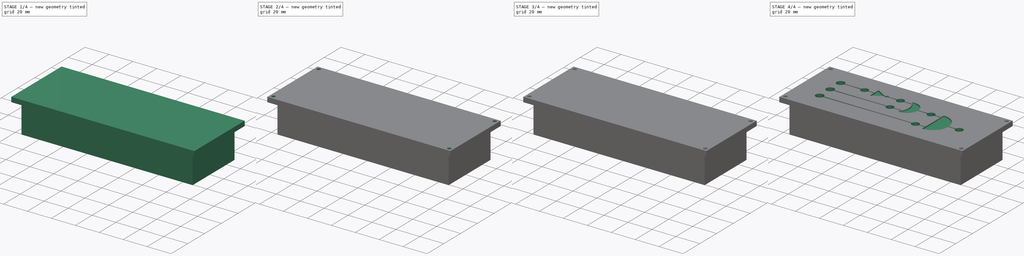
[diagram: build sequence overview — one tinted view per stage of 4, left to right]
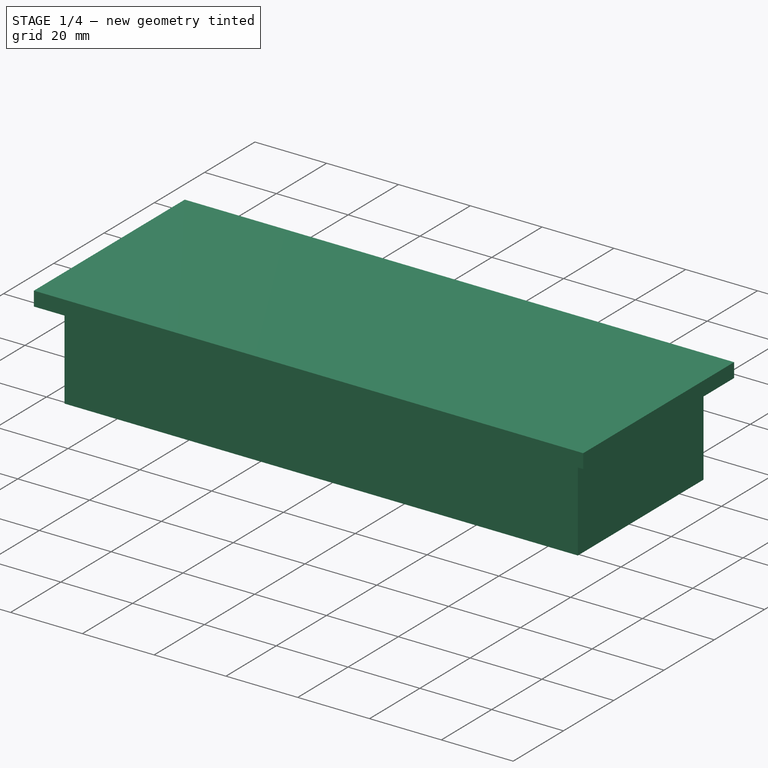
[diagram: stage 1 of 4 — iso view after this stage's code; geometry added in this stage tinted green]
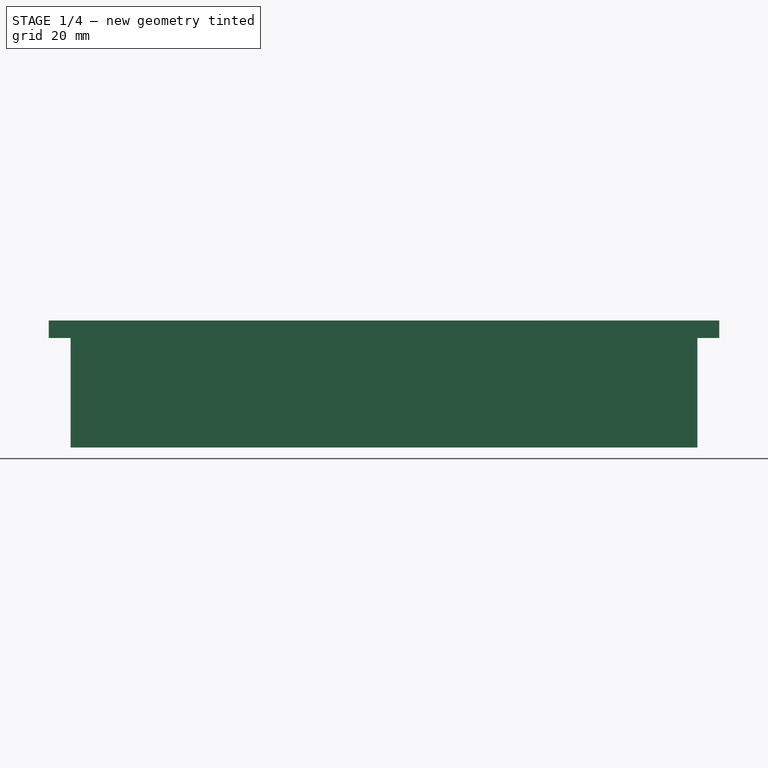
[diagram: stage 1 of 4 — front view after this stage's code; geometry added in this stage tinted green]
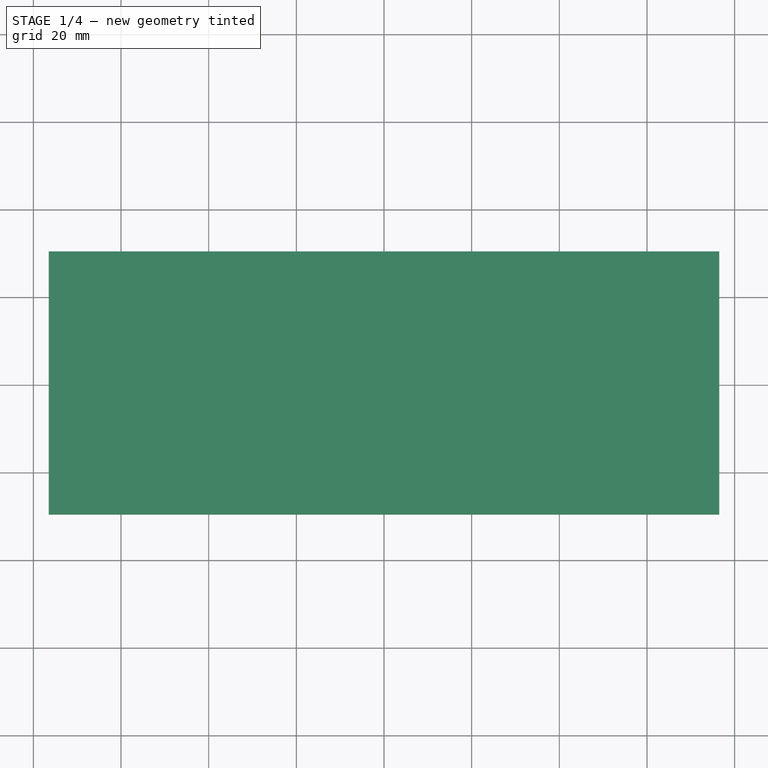
[diagram: stage 1 of 4 — top view after this stage's code; geometry added in this stage tinted green]
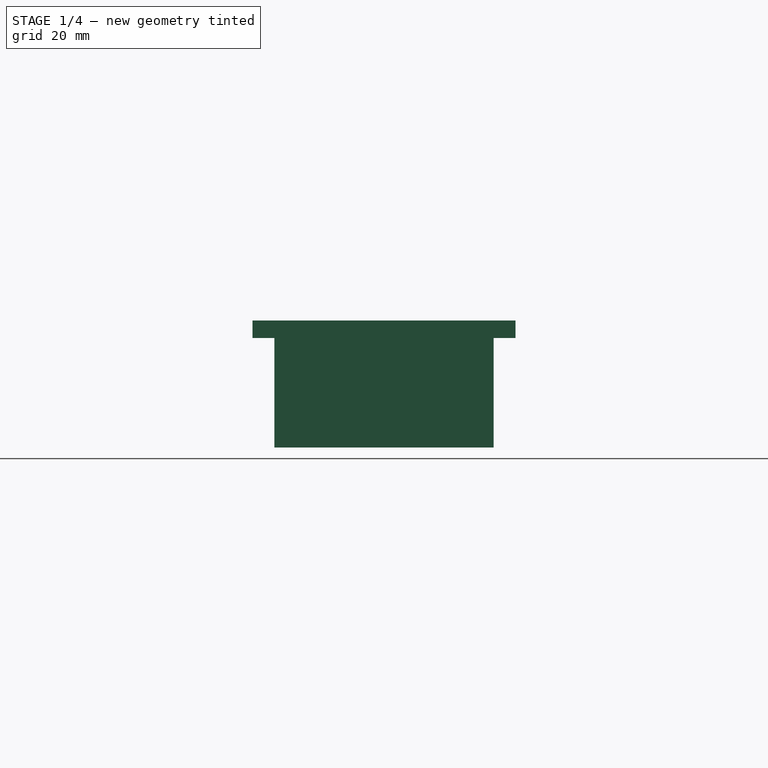
[diagram: stage 1 of 4 — right view after this stage's code; geometry added in this stage tinted green]
FCSTD DOCUMENT  (FreeCAD 0.20R29603 (Git))
Label: module-2
License: All rights reserved
LicenseURL: http://en.wikipedia.org/wiki/All_rights_reserved
objects: Sketcher::SketchObject×7, PartDesign::Pocket×4, PartDesign::Mirrored×4, PartDesign::Pad×3, PartDesign::MultiTransform×2, PartDesign::Body×1
note: 28 computed .brp shape members not serialized (recipe doc carries the construction recipe); baked Part::Feature solids carry a one-line shape summary decoded from their .brp

FEATURE [Sketcher::SketchObject] Sketch  label="FrontPanelBase"
  FullyConstrained = true
  MapMode = 5
  Support = -> [XY_Plane]
  sketch-geometry (4):
    g0: LineSegment StartX=-76.5 StartY=30 StartZ=0 EndX=76.5 EndY=30 EndZ=0
    g1: LineSegment StartX=76.5 StartY=30 StartZ=0 EndX=76.5 EndY=-30 EndZ=0
    g2: LineSegment StartX=76.5 StartY=-30 StartZ=0 EndX=-76.5 EndY=-30 EndZ=0
    g3: LineSegment StartX=-76.5 StartY=-30 StartZ=0 EndX=-76.5 EndY=30 EndZ=0
  constraints (10):
    c: Coincident(g0,g1)
    c: Coincident(g1,g2)
    c: Coincident(g2,g3)
    c: Coincident(g3,g0)
    c: DistanceX(g0,g0) = 153
    c: DistanceY(g3,g3) = 60
    c: Vertical(g1)
    c: Horizontal(g2)
    c: Symmetric(g0,g0,g-2)
    c: Symmetric(g0,g2,g-1)
FEATURE [PartDesign::Pad] Pad
  Direction = (0,0,1)
  Length = 4
  Length2 = 10
  Profile = -> Sketch
  ReferenceAxis = -> Sketch [N_Axis]
  Type = 0
FEATURE [Sketcher::SketchObject] Sketch002  label="InnerWall"
  FullyConstrained = true
  MapMode = 5
  Placement = pos=(0,0,0) rot=(1,0,0;3.14159rad)
  Support = -> [Pad]
  sketch-geometry (8):
    g0: LineSegment StartX=-71.5 StartY=25 StartZ=0 EndX=71.5 EndY=25 EndZ=0
    g1: LineSegment StartX=71.5 StartY=25 StartZ=0 EndX=71.5 EndY=-25 EndZ=0
    g2: LineSegment StartX=71.5 StartY=-25 StartZ=0 EndX=-71.5 EndY=-25 EndZ=0
    g3: LineSegment StartX=-71.5 StartY=-25 StartZ=0 EndX=-71.5 EndY=25 EndZ=0
    g4: LineSegment StartX=-69.5 StartY=23 StartZ=0 EndX=69.5 EndY=23 EndZ=0
    g5: LineSegment StartX=69.5 StartY=23 StartZ=0 EndX=69.5 EndY=-23 EndZ=0
    g6: LineSegment StartX=69.5 StartY=-23 StartZ=0 EndX=-69.5 EndY=-23 EndZ=0
    g7: LineSegment StartX=-69.5 StartY=-23 StartZ=0 EndX=-69.5 EndY=23 EndZ=0
  constraints (23):
    c: Coincident(g0,g1)
    c: Coincident(g1,g2)
    c: Coincident(g2,g3)
    c: Coincident(g3,g0)
    c: Horizontal(g0)
    c: Horizontal(g2)
    c: Vertical(g1)
    c: Vertical(g3)
    c: Symmetric(g0,g1,g-1)
    c: Coincident(g4,g5)
    c: Coincident(g5,g6)
    c: Coincident(g6,g7)
    c: Coincident(g7,g4)
    c: Horizontal(g4)
    c: Horizontal(g6)
    c: Vertical(g5)
    c: Vertical(g7)
    c: Distance(g0,g7) = 2
    c: Distance(g0,g4) = 2
    c: Distance(g2,g6) = 2
    c: Distance(g1,g5) = 2
    c: DistanceX(g4,g4) = 139
    c: DistanceY(g6,g4) = 46
FEATURE [PartDesign::Pad] Pad001
  BaseFeature = -> Pad
  Direction = (0,0,-1)
  Length = 25
  Length2 = 10
  Profile = -> Sketch002
  ReferenceAxis = -> Sketch002 [N_Axis]
  Type = 0
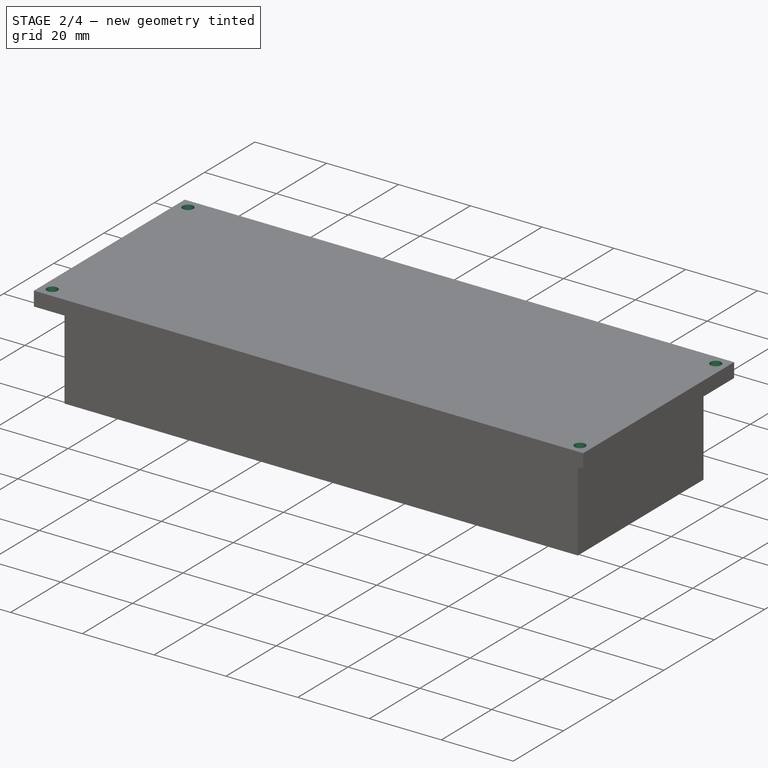
[diagram: stage 2 of 4 — iso view after this stage's code; geometry added in this stage tinted green]
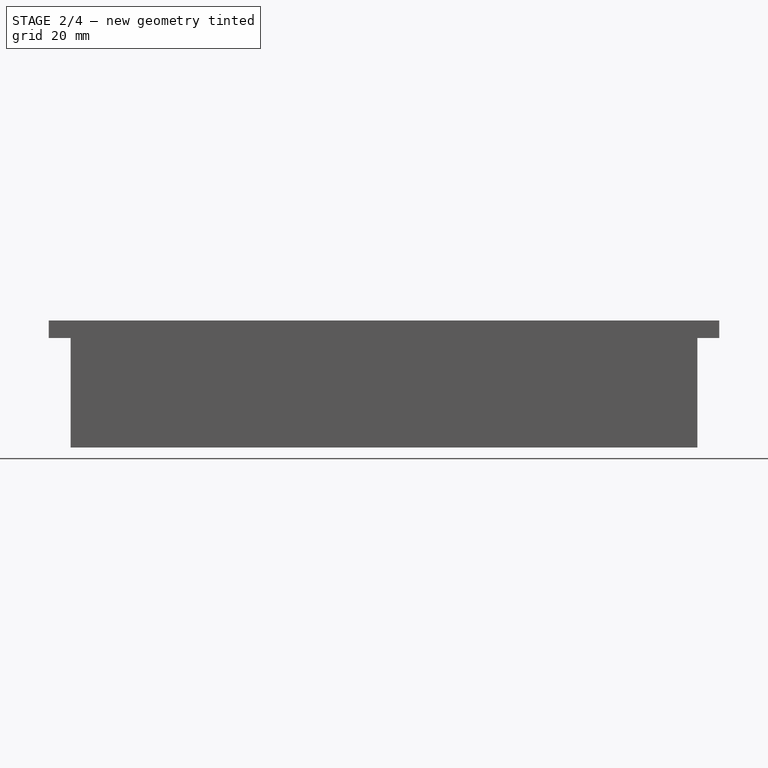
[diagram: stage 2 of 4 — front view after this stage's code; geometry added in this stage tinted green]
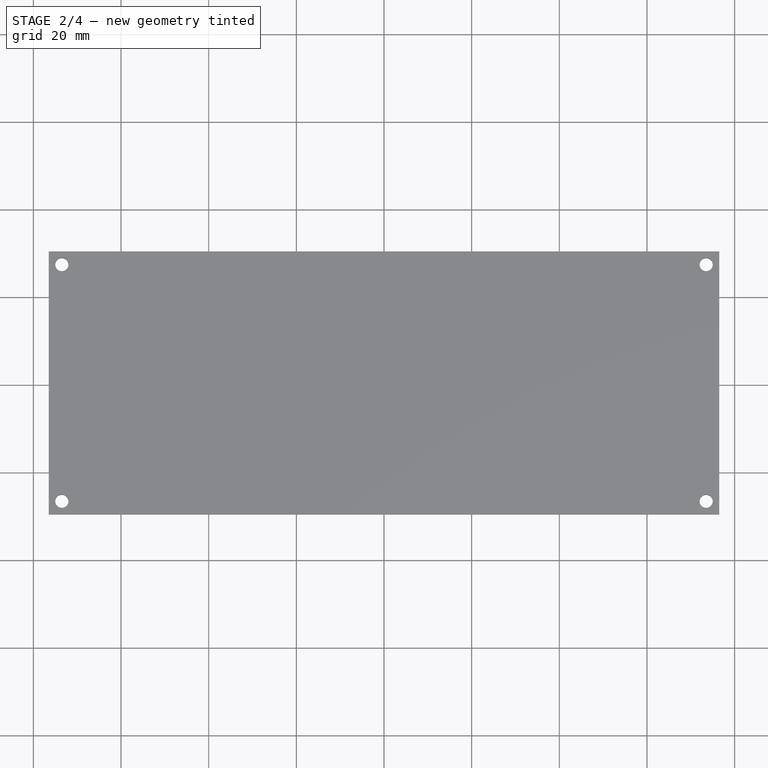
[diagram: stage 2 of 4 — top view after this stage's code; geometry added in this stage tinted green]
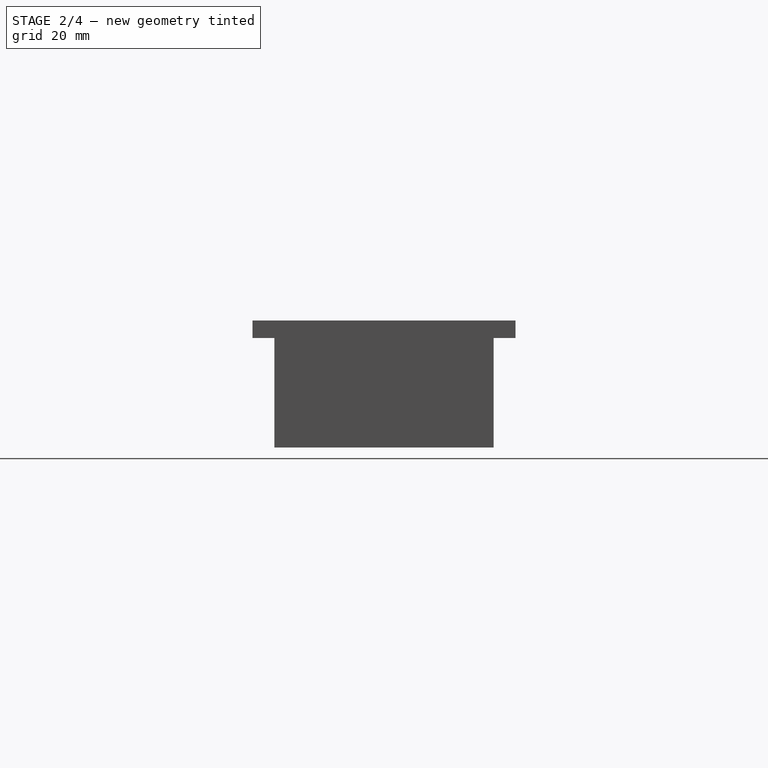
[diagram: stage 2 of 4 — right view after this stage's code; geometry added in this stage tinted green]
FEATURE [Sketcher::SketchObject] Sketch003  label="FrontPanelHoles"
  ExternalGeometry = -> [Pad001]
  FullyConstrained = true
  MapMode = 5
  Placement = pos=(0,0,0) rot=(1,0,0;3.14159rad)
  Support = -> [Pad001]
  sketch-geometry (4):
    g0: Circle CenterX=-73.5 CenterY=27 CenterZ=0 NormalX=0 NormalY=0 NormalZ=1 AngleXU=0 Radius=1.5
    g1: Circle CenterX=-73.5 CenterY=-27 CenterZ=0 NormalX=0 NormalY=0 NormalZ=1 AngleXU=0 Radius=1.5
    g2: Circle CenterX=73.5 CenterY=-27 CenterZ=0 NormalX=0 NormalY=0 NormalZ=1 AngleXU=0 Radius=1.5
    g3: Circle CenterX=73.5 CenterY=27 CenterZ=0 NormalX=0 NormalY=0 NormalZ=1 AngleXU=0 Radius=1.5
  constraints (12):
    c: Diameter(g0) = 3
    c: Equal(g3,g2)
    c: Equal(g2,g1)
    c: Equal(g1,g0)
    c: Distance(g1,g-5) = 3
    c: Distance(g1,g-3) = 3
    c: Distance(g2,g-5) = 3
    c: Distance(g2,g-6) = 3
    c: Distance(g3,g-6) = 3
    c: Distance(g3,g-4) = 3
    c: Distance(g0,g-4) = 3
    c: Distance(g0,g-3) = 3
FEATURE [PartDesign::Pocket] Pocket
  BaseFeature = -> Pad001
  Direction = (0,0,1)
  Length = 5
  Length2 = 5
  Profile = -> Sketch003
  ReferenceAxis = -> Sketch003 [N_Axis]
  Type = 1
FEATURE [Sketcher::SketchObject] Sketch004  label="LidSupport"
  ExternalGeometry = -> [Pocket]
  FullyConstrained = true
  MapMode = 5
  Placement = pos=(0,0,0) rot=(1,0,0;3.14159rad)
  Support = -> [Pocket]
  sketch-geometry (3):
    g0: LineSegment StartX=-69.5 StartY=23 StartZ=0 EndX=-62.5 EndY=23 EndZ=0
    g1: LineSegment StartX=-69.5 StartY=23 StartZ=0 EndX=-69.5 EndY=16 EndZ=0
    g2: ArcOfCircle CenterX=-69.5 CenterY=23 CenterZ=0 NormalX=0 NormalY=0 NormalZ=1 AngleXU=0 Radius=7 StartAngle=4.71239 EndAngle=6.28319
  constraints (8):
    c: Horizontal(g0)
    c: Coincident(g1,g0)
    c: Coincident(g2,g0)
    c: Coincident(g2,g0)
    c: Radius(g2) = 7
    c: Coincident(g1,g2)
    c: Vertical(g1)
    c: Coincident(g0,g-4)
FEATURE [PartDesign::Mirrored] Mirrored  label="LidSupportMirrorV"
  MirrorPlane = -> Sketch004 [V_Axis]
FEATURE [PartDesign::Mirrored] Mirrored001  label="LidSupportMirrorH"
  MirrorPlane = -> Sketch004 [H_Axis]
FEATURE [PartDesign::Pad] Pad002
  BaseFeature = -> Pocket
  Direction = (0,0,-1)
  Length = 22
  Length2 = 10
  Profile = -> Sketch004
  ReferenceAxis = -> Sketch004 [N_Axis]
  Type = 0
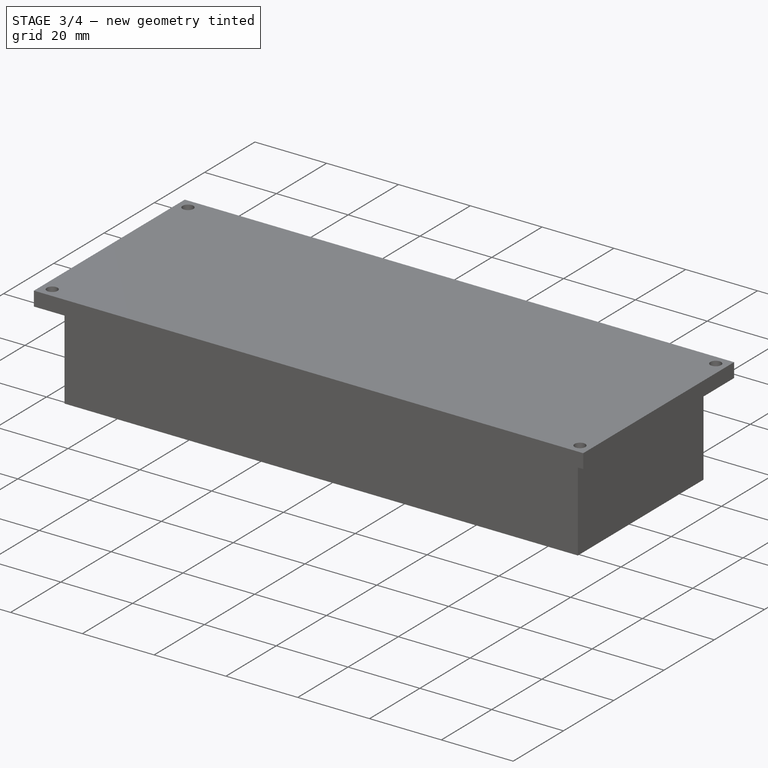
[diagram: stage 3 of 4 — iso view after this stage's code; geometry added in this stage tinted green]
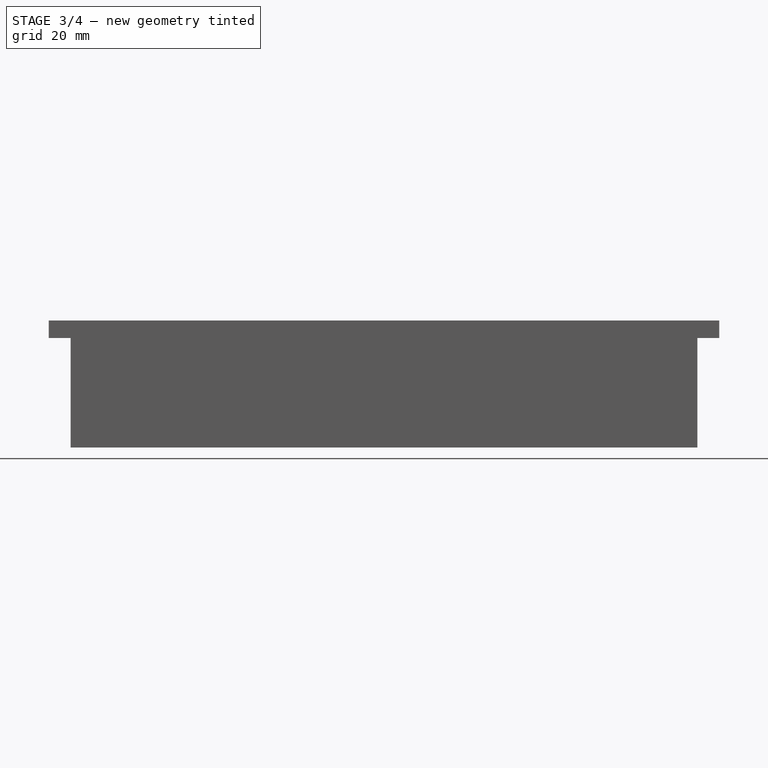
[diagram: stage 3 of 4 — front view after this stage's code; geometry added in this stage tinted green]
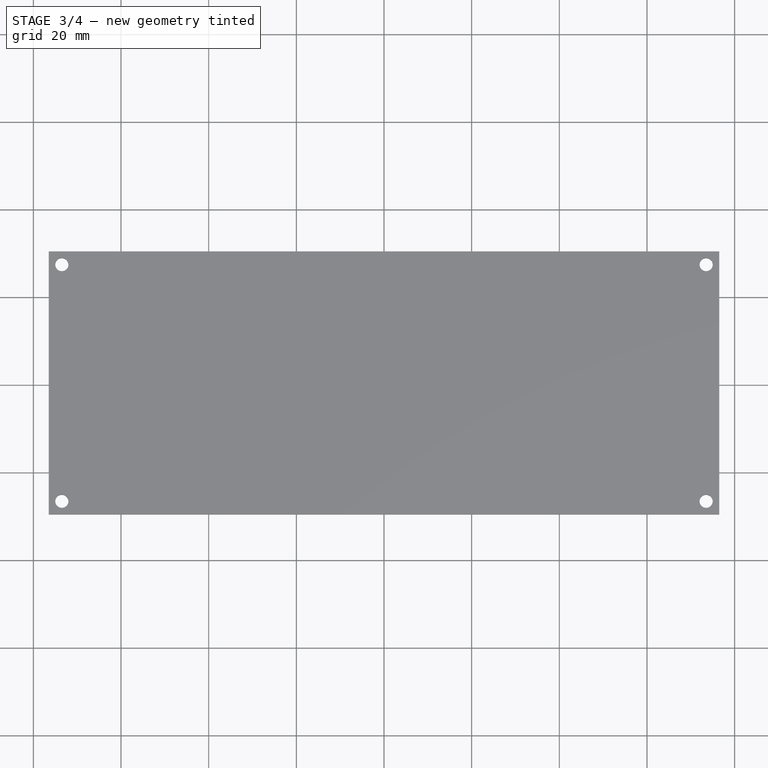
[diagram: stage 3 of 4 — top view after this stage's code; geometry added in this stage tinted green]
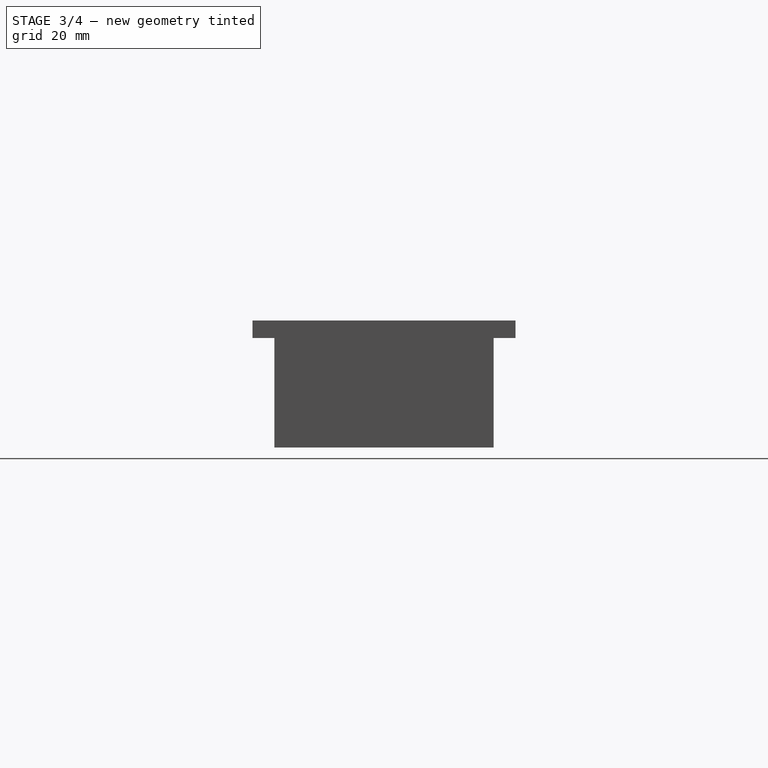
[diagram: stage 3 of 4 — right view after this stage's code; geometry added in this stage tinted green]
FEATURE [PartDesign::MultiTransform] MultiTransform
  BaseFeature = -> Pad002
  Originals = -> [Pad002]
  Transformations = -> [Mirrored,Mirrored001]
FEATURE [Sketcher::SketchObject] Sketch005  label="LidHole"
  ExternalGeometry = -> [MultiTransform]
  FullyConstrained = true
  MapMode = 5
  Placement = pos=(0,0,-22) rot=(1,0,0;3.14159rad)
  Support = -> [MultiTransform]
  sketch-geometry (1):
    g0: Circle CenterX=-66.7 CenterY=20.2 CenterZ=0 NormalX=0 NormalY=0 NormalZ=1 AngleXU=0 Radius=2.25
  constraints (3):
    c: Diameter(g0) = 4.5
    c: Distance(g0,g-3) = 2.8
    c: Distance(g0,g-4) = 2.8
FEATURE [PartDesign::Mirrored] Mirrored002  label="LidHoleMirrorV"
  MirrorPlane = -> Sketch005 [V_Axis]
FEATURE [PartDesign::Mirrored] Mirrored003  label="LidHoleMirrorH"
  MirrorPlane = -> Sketch005 [H_Axis]
FEATURE [PartDesign::Pocket] Pocket001
  BaseFeature = -> MultiTransform
  Direction = (0,0,1)
  Length = 10
  Length2 = 5
  Profile = -> Sketch005
  ReferenceAxis = -> Sketch005 [N_Axis]
  Type = 0
FEATURE [PartDesign::MultiTransform] MultiTransform001
  BaseFeature = -> Pocket001
  Originals = -> [Pocket001]
  Transformations = -> [Mirrored002,Mirrored003]
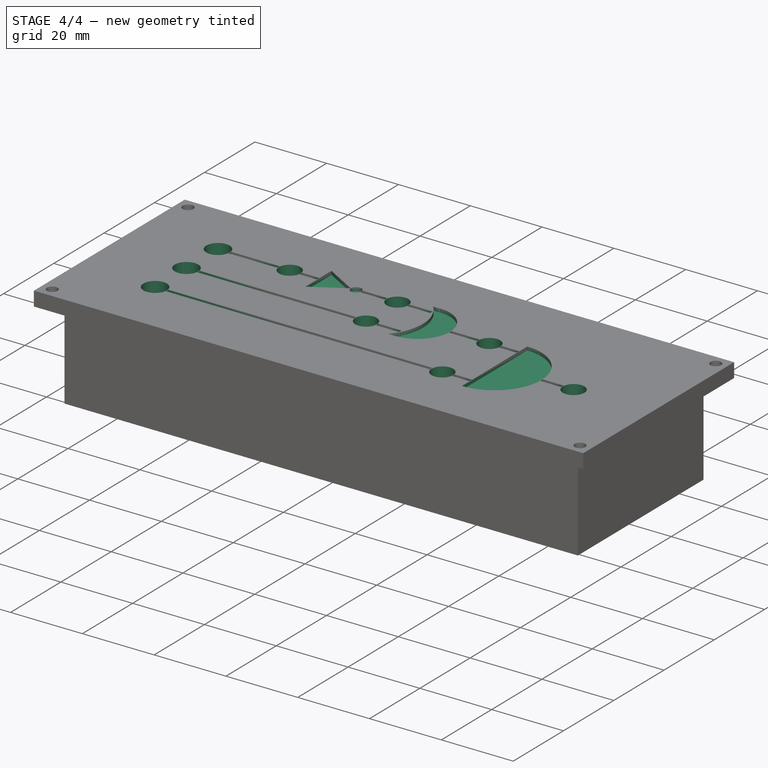
[diagram: stage 4 of 4 — iso view after this stage's code; geometry added in this stage tinted green]
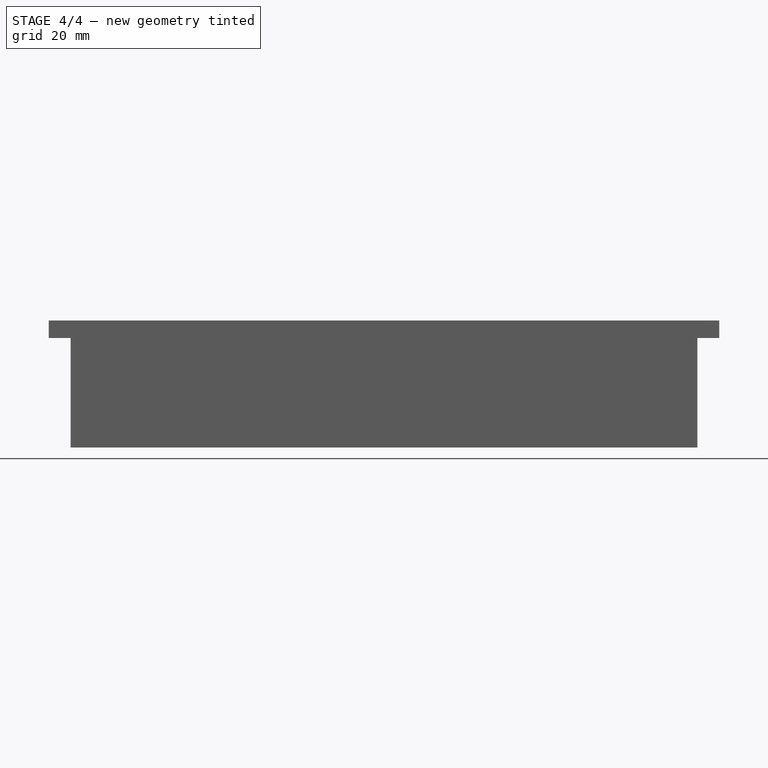
[diagram: stage 4 of 4 — front view after this stage's code; geometry added in this stage tinted green]
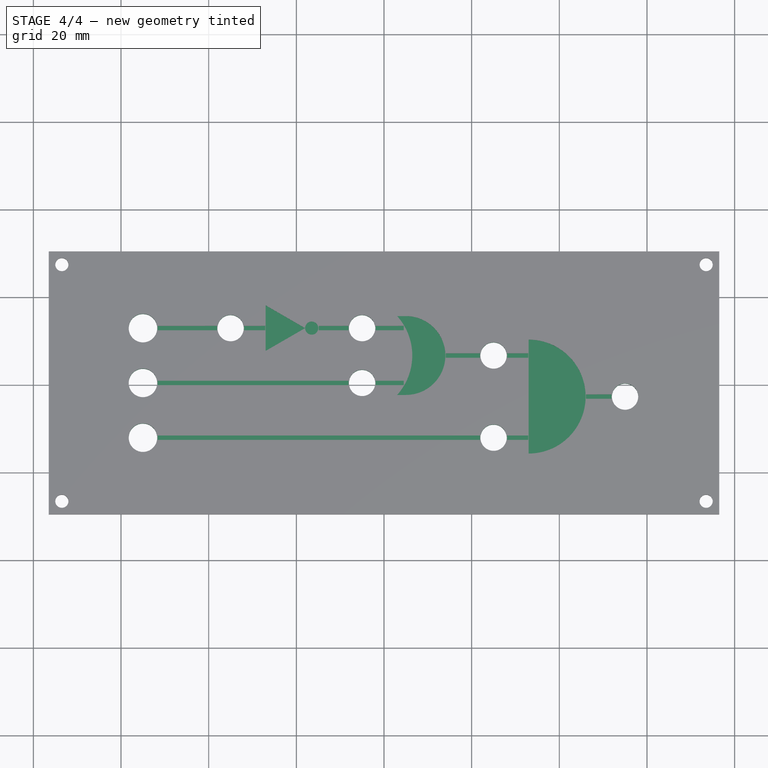
[diagram: stage 4 of 4 — top view after this stage's code; geometry added in this stage tinted green]
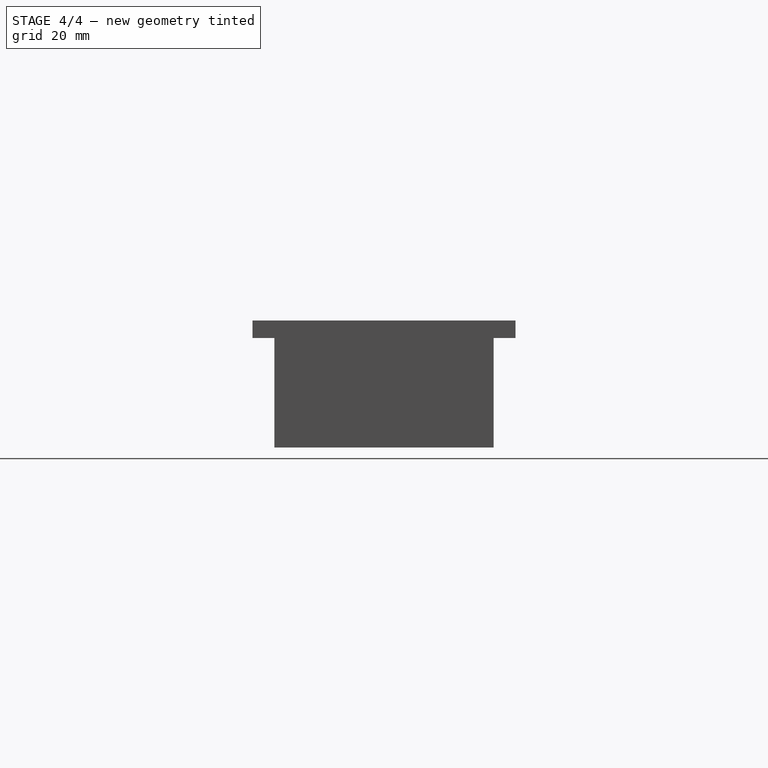
[diagram: stage 4 of 4 — right view after this stage's code; geometry added in this stage tinted green]
FEATURE [Sketcher::SketchObject] Sketch006  label="ComponentHoles"
  ExternalGeometry = -> [MultiTransform001]
  FullyConstrained = true
  MapMode = 5
  Placement = pos=(0,0,4) rot=(0,0,1;0rad)
  Support = -> [MultiTransform001]
  expr: Constraints[25] = .Constraints.SwitchVSpace / 2
  expr: Constraints[26] = (.Constraints.SwitchVSpace / 2 + .Constraints.SwitchVSpace) / 2
  expr: Constraints[4] = .Constraints.SwitchLeft
  expr: Constraints[5] = .Constraints.SwitchLeft
  expr: Constraints[8] = .Constraints.SwitchVSpace
  sketch-geometry (9):
    g0: Circle CenterX=-55 CenterY=12.5 CenterZ=0 NormalX=0 NormalY=0 NormalZ=1 AngleXU=0 Radius=3.25
    g1: Circle CenterX=-55 CenterY=-3e-16 CenterZ=0 NormalX=0 NormalY=0 NormalZ=1 AngleXU=0 Radius=3.25
    g2: Circle CenterX=-55 CenterY=-12.5 CenterZ=0 NormalX=0 NormalY=0 NormalZ=1 AngleXU=0 Radius=3.25
    g3: Circle CenterX=-35 CenterY=12.5 CenterZ=0 NormalX=0 NormalY=0 NormalZ=1 AngleXU=0 Radius=3
    g4: Circle CenterX=-5 CenterY=-3e-16 CenterZ=0 NormalX=0 NormalY=0 NormalZ=1 AngleXU=0 Radius=3
    g5: Circle CenterX=25 CenterY=-12.5 CenterZ=0 NormalX=0 NormalY=0 NormalZ=1 AngleXU=0 Radius=3
    g6: Circle CenterX=-5 CenterY=12.5 CenterZ=0 NormalX=0 NormalY=0 NormalZ=1 AngleXU=0 Radius=3
    g7: Circle CenterX=25 CenterY=6.25 CenterZ=0 NormalX=0 NormalY=0 NormalZ=1 AngleXU=0 Radius=3
    g8: Circle CenterX=55 CenterY=-3.125 CenterZ=0 NormalX=0 NormalY=0 NormalZ=1 AngleXU=0 Radius=3
  constraints (27):
    c: Diameter(g0) = 6.5
    c: Equal(g0,g1)
    c: Equal(g1,g2)
    c: DistanceX(g-10,g0) = 7.5  'SwitchLeft'
    c: DistanceX(g-10,g1) = 7.5
    c: DistanceX(g-10,g2) = 7.5
    c: Distance(g0,g-3) = 10.5  'SwitchTop'
    c: DistanceY(g1,g0) = 12.5  'SwitchVSpace'
    c: DistanceY(g2,g1) = 12.5
    c: Diameter(g3) = 6
    c: Equal(g3,g4)
    c: Equal(g4,g5)
    c: DistanceY(g0,g3) = 0
    c: DistanceY(g1,g4) = 0
    c: DistanceY(g2,g5) = 0
    c: DistanceX(g0,g3) = 20
    c: DistanceX(g1,g4) = 50
    c: DistanceX(g2,g5) = 80
    c: DistanceY(g3,g6) = 0
    c: DistanceX(g3,g6) = 30
    c: Equal(g3,g6)
    c: Equal(g6,g7)
    c: Equal(g7,g8)
    c: DistanceX(g6,g7) = 30
    c: DistanceX(g7,g8) = 30
    c: DistanceY(g7,g6) = 6.25
    c: DistanceY(g8,g7) = 9.375
FEATURE [PartDesign::Pocket] Pocket002
  BaseFeature = -> MultiTransform001
  Direction = (0,0,-1)
  Length = 5
  Length2 = 5
  Profile = -> Sketch006
  ReferenceAxis = -> Sketch006 [N_Axis]
  Type = 1
FEATURE [Sketcher::SketchObject] Sketch007  label="LogicGates"
  ExternalGeometry = -> [Pocket002]
  FullyConstrained = true
  MapMode = 5
  Placement = pos=(0,0,4) rot=(0,0,1;0rad)
  Support = -> [Pocket002]
  expr: Constraints[111] = .Constraints.PathHeight
  expr: Constraints[112] = .Constraints.PathPadding
  expr: Constraints[113] = .Constraints.PathPadding
  expr: Constraints[124] = .Constraints.PathHeight
  expr: Constraints[125] = .Constraints.PathPadding
  expr: Constraints[126] = .Constraints.PathPadding
  expr: Constraints[140] = .Constraints.PathPadding
  expr: Constraints[141] = .Constraints.PathPadding
  expr: Constraints[150] = .Constraints.PathPadding
  expr: Constraints[151] = .Constraints.PathPadding
  expr: Constraints[185] = .Constraints.PathPadding
  expr: Constraints[202] = .Constraints.PathPadding
  expr: Constraints[20] = .Constraints.PathHeight
  expr: Constraints[211] = .Constraints.PathHeight
  expr: Constraints[212] = .Constraints.PathHeight
  expr: Constraints[30] = .Constraints.PathHeight
  expr: Constraints[39] = .Constraints.PathHeight
  expr: Constraints[55] = .Constraints.PathHeight
  expr: Constraints[56] = .Constraints.PathPadding
  expr: Constraints[65] = .Constraints.PathHeight
  expr: Constraints[66] = .Constraints.PathPadding
  expr: Constraints[75] = .Constraints.PathHeight
  expr: Constraints[77] = .Constraints.PathPadding
  expr: Constraints[79] = .Constraints.PathPadding
  expr: Constraints[81] = .Constraints.PathPadding
  expr: Constraints[83] = .Constraints.PathPadding
  expr: Constraints[85] = .Constraints.PathPadding
  expr: Constraints[86] = .Constraints.PathPadding
  expr: Constraints[88] = .Constraints.PathPadding
  sketch-geometry (83):
    g0: ArcOfCircle CenterX=5 CenterY=6.25 CenterZ=0 NormalX=0 NormalY=0 NormalZ=1 AngleXU=0 Radius=9 StartAngle=4.71239 EndAngle=7.85398
    g1: LineSegment StartX=5 StartY=15.25 StartZ=0 EndX=3 EndY=15.25 EndZ=0
    g2: LineSegment StartX=5 StartY=-2.75 StartZ=0 EndX=3 EndY=-2.75 EndZ=0
    g3: ArcOfCircle CenterX=-7 CenterY=6.25 CenterZ=0 NormalX=0 NormalY=0 NormalZ=1 AngleXU=0 Radius=13.4536 StartAngle=5.55037 EndAngle=7.016
    g4: LineSegment StartX=-1.9 StartY=0.5 StartZ=0 EndX=4.5 EndY=0.5 EndZ=0
    g5: LineSegment StartX=4.5 StartY=0.5 StartZ=0 EndX=4.5 EndY=-0.5 EndZ=0
    g6: LineSegment StartX=4.5 StartY=-0.5 StartZ=0 EndX=-1.9 EndY=-0.5 EndZ=0
    g7: LineSegment StartX=-1.9 StartY=-0.5 StartZ=0 EndX=-1.9 EndY=0.5 EndZ=0
    g8: LineSegment StartX=-1.9 StartY=13 StartZ=0 EndX=4.5 EndY=13 EndZ=0
    g9: LineSegment StartX=4.5 StartY=13 StartZ=0 EndX=4.5 EndY=12 EndZ=0
    g10: LineSegment StartX=4.5 StartY=12 StartZ=0 EndX=-1.9 EndY=12 EndZ=0
    g11: LineSegment StartX=-1.9 StartY=12 StartZ=0 EndX=-1.9 EndY=13 EndZ=0
    g12: LineSegment StartX=14.1 StartY=6.75 StartZ=0 EndX=21.9 EndY=6.75 EndZ=0
    g13: LineSegment StartX=21.9 StartY=6.75 StartZ=0 EndX=21.9 EndY=5.75 EndZ=0
    g14: LineSegment StartX=21.9 StartY=5.75 StartZ=0 EndX=14.1 EndY=5.75 EndZ=0
    g15: LineSegment StartX=14.1 StartY=5.75 StartZ=0 EndX=14.1 EndY=6.75 EndZ=0
    g16: ArcOfCircle CenterX=33 CenterY=-3.125 CenterZ=0 NormalX=0 NormalY=0 NormalZ=1 AngleXU=0 Radius=13 StartAngle=4.71239 EndAngle=7.85398
    g17: LineSegment StartX=33 StartY=9.875 StartZ=0 EndX=33 EndY=-16.125 EndZ=0
    g18: GeomPoint X=46 Y=-3.125 Z=0
    g19: LineSegment StartX=28.1 StartY=-12 StartZ=0 EndX=32.9 EndY=-12 EndZ=0
    g20: LineSegment StartX=32.9 StartY=-12 StartZ=0 EndX=32.9 EndY=-13 EndZ=0
    g21: LineSegment StartX=32.9 StartY=-13 StartZ=0 EndX=28.1 EndY=-13 EndZ=0
    g22: LineSegment StartX=28.1 StartY=-13 StartZ=0 EndX=28.1 EndY=-12 EndZ=0
    g23: LineSegment StartX=28.1 StartY=6.75 StartZ=0 EndX=32.9 EndY=6.75 EndZ=0
    g24: LineSegment StartX=32.9 StartY=6.75 StartZ=0 EndX=32.9 EndY=5.75 EndZ=0
    g25: LineSegment StartX=32.9 StartY=5.75 StartZ=0 EndX=28.1 EndY=5.75 EndZ=0
    g26: LineSegment StartX=28.1 StartY=5.75 StartZ=0 EndX=28.1 EndY=6.75 EndZ=0
    g27: LineSegment StartX=46.1 StartY=-2.625 StartZ=0 EndX=51.9 EndY=-2.625 EndZ=0
    g28: LineSegment StartX=51.9 StartY=-2.625 StartZ=0 EndX=51.9 EndY=-3.625 EndZ=0
    g29: LineSegment StartX=51.9 StartY=-3.625 StartZ=0 EndX=46.1 EndY=-3.625 EndZ=0
    g30: LineSegment StartX=46.1 StartY=-3.625 StartZ=0 EndX=46.1 EndY=-2.625 EndZ=0
    g31: GeomPoint X=52 Y=-3.125 Z=0
    g32: GeomPoint X=-2 Y=12.5 Z=0
    g33: GeomPoint X=-2 Y=-3e-16 Z=0
    g34: GeomPoint X=22 Y=6.25 Z=0
    g35: GeomPoint X=28 Y=6.25 Z=0
    g36: GeomPoint X=28 Y=-12.5 Z=0
    g37: LineSegment StartX=-18 StartY=12.5 StartZ=0 EndX=-27 EndY=17.6962 EndZ=0
    g38: LineSegment StartX=-27 StartY=17.6962 StartZ=0 EndX=-27 EndY=7.30385 EndZ=0
    g39: LineSegment StartX=-27 StartY=7.30385 StartZ=0 EndX=-18 EndY=12.5 EndZ=0
    g40: Circle CenterX=-24 CenterY=12.5 CenterZ=0 NormalX=0 NormalY=0 NormalZ=1 AngleXU=0 Radius=6
    g41: Circle CenterX=-16.5 CenterY=12.5 CenterZ=0 NormalX=0 NormalY=0 NormalZ=1 AngleXU=0 Radius=1.5
    g42: GeomPoint X=-32 Y=12.5 Z=0
    g43: GeomPoint X=-38 Y=12.5 Z=0
    g44: LineSegment StartX=-31.9 StartY=13 StartZ=0 EndX=-27.1 EndY=13 EndZ=0
    g45: LineSegment StartX=-27.1 StartY=13 StartZ=0 EndX=-27.1 EndY=12 EndZ=0
    g46: LineSegment StartX=-27.1 StartY=12 StartZ=0 EndX=-31.9 EndY=12 EndZ=0
    g47: LineSegment StartX=-31.9 StartY=12 StartZ=0 EndX=-31.9 EndY=13 EndZ=0
    g48: GeomPoint X=-15 Y=12.5 Z=0
    g49: GeomPoint X=-8 Y=12.5 Z=0
    g50: LineSegment StartX=-14.9 StartY=13 StartZ=0 EndX=-8.1 EndY=13 EndZ=0
    g51: LineSegment StartX=-8.1 StartY=13 StartZ=0 EndX=-8.1 EndY=12 EndZ=0
    g52: LineSegment StartX=-8.1 StartY=12 StartZ=0 EndX=-14.9 EndY=12 EndZ=0
    g53: LineSegment StartX=-14.9 StartY=12 StartZ=0 EndX=-14.9 EndY=13 EndZ=0
    g54: GeomPoint X=-51.75 Y=-12.5 Z=0
    g55: GeomPoint X=-51.75 Y=-3e-16 Z=0
    g56: GeomPoint X=-51.75 Y=12.5 Z=0
    g57: GeomPoint X=22 Y=-12.5 Z=0
    g58: GeomPoint X=-8 Y=-3e-16 Z=0
    g59: LineSegment StartX=-51.65 StartY=-12 StartZ=0 EndX=21.9 EndY=-12 EndZ=0
    g60: LineSegment StartX=21.9 StartY=-12 StartZ=0 EndX=21.9 EndY=-13 EndZ=0
    g61: LineSegment StartX=21.9 StartY=-13 StartZ=0 EndX=-51.65 EndY=-13 EndZ=0
    g62: LineSegment StartX=-51.65 StartY=-13 StartZ=0 EndX=-51.65 EndY=-12 EndZ=0
    g63: LineSegment StartX=-51.65 StartY=0.5 StartZ=0 EndX=-8.1 EndY=0.5 EndZ=0
    g64: LineSegment StartX=-8.1 StartY=0.5 StartZ=0 EndX=-8.1 EndY=-0.5 EndZ=0
    g65: LineSegment StartX=-8.1 StartY=-0.5 StartZ=0 EndX=-51.65 EndY=-0.5 EndZ=0
    g66: LineSegment StartX=-51.65 StartY=-0.5 StartZ=0 EndX=-51.65 EndY=0.5 EndZ=0
    g67: LineSegment StartX=-51.65 StartY=13 StartZ=0 EndX=-38.1 EndY=13 EndZ=0
    g68: LineSegment StartX=-38.1 StartY=13 StartZ=0 EndX=-38.1 EndY=12 EndZ=0
    g69: LineSegment StartX=-38.1 StartY=12 StartZ=0 EndX=-51.65 EndY=12 EndZ=0
    g70: LineSegment StartX=-51.65 StartY=12 StartZ=0 EndX=-51.65 EndY=13 EndZ=0
    g71: GeomPoint X=-44.875 Y=12.5 Z=0
    g72: GeomPoint X=-29.875 Y=-3e-16 Z=0
    g73: GeomPoint X=-14.875 Y=-12.5 Z=0
    g74: GeomPoint X=30.5 Y=-12.5 Z=0
    g75: GeomPoint X=49 Y=-3.125 Z=0
    g76: GeomPoint X=30.5 Y=6.25 Z=0
    g77: GeomPoint X=18 Y=6.25 Z=0
    g78: GeomPoint X=14 Y=6.25 Z=0
    g79: GeomPoint X=1.3 Y=12.5 Z=0
    g80: GeomPoint X=1.3 Y=-3e-16 Z=0
    g81: GeomPoint X=-11.5 Y=12.5 Z=0
    g82: GeomPoint X=-29.5 Y=12.5 Z=0
  constraints (213):
    c: DistanceX(g0,g-9) = 20
    c: Vertical(g0,g0)
    c: Coincident(g1,g0)
    c: Horizontal(g1)
    c: Coincident(g2,g0)
    c: Equal(g2,g1)
    c: DistanceX(g1,g0) = 2
    c: Coincident(g3,g1)
    c: Coincident(g3,g2)
    c: Vertical(g0,g0)
    c: DistanceX(g3,g0) = 12
    c: DistanceY(g0,g0) = 9
    c: Coincident(g4,g5)
    c: Coincident(g5,g6)
    c: Coincident(g6,g7)
    c: Coincident(g7,g4)
    c: Horizontal(g4)
    c: Horizontal(g6)
    c: Vertical(g5)
    c: Vertical(g7)
    c: DistanceY(g6,g4) = 1
    c: DistanceX(g3,g4) = 11.5
    c: Coincident(g8,g9)
    c: Coincident(g9,g10)
    c: Coincident(g10,g11)
    c: Coincident(g11,g8)
    c: Horizontal(g8)
    c: Horizontal(g10)
    c: Vertical(g9)
    c: Vertical(g11)
    c: DistanceY(g10,g8) = 1
    c: Coincident(g12,g13)
    c: Coincident(g13,g14)
    c: Coincident(g14,g15)
    c: Coincident(g15,g12)
    c: Horizontal(g12)
    c: Horizontal(g14)
    c: Vertical(g13)
    c: Vertical(g15)
    c: DistanceY(g14,g12) = 1
    c: Vertical(g16,g16)
    c: Vertical(g16,g16)
    c: Coincident(g17,g16)
    c: Coincident(g17,g16)
    c: DistanceY(g16,g16) = 13
    c: PointOnObject(g18,g16)
    c: DistanceX(g-9,g16) = 8
    c: Coincident(g19,g20)
    c: Coincident(g20,g21)
    c: Coincident(g21,g22)
    c: Coincident(g22,g19)
    c: Horizontal(g19)
    c: Horizontal(g21)
    c: Vertical(g20)
    c: Vertical(g22)
    c: DistanceY(g21,g19) = 1
    c: Distance(g19,g17) = 0.1
    c: Coincident(g23,g24)
    c: Coincident(g24,g25)
    c: Coincident(g25,g26)
    c: Coincident(g26,g23)
    c: Horizontal(g23)
    c: Horizontal(g25)
    c: Vertical(g24)
    c: Vertical(g26)
    c: DistanceY(g24,g23) = 1
    c: Distance(g23,g17) = 0.1
    c: Coincident(g27,g28)
    c: Coincident(g28,g29)
    c: Coincident(g29,g30)
    c: Coincident(g30,g27)
    c: Horizontal(g27)
    c: Horizontal(g29)
    c: Vertical(g28)
    c: Vertical(g30)
    c: DistanceY(g29,g27) = 1
    c: PointOnObject(g31,g-10)
    c: Distance(g31,g28) = 0.1
    c: PointOnObject(g32,g-8)
    c: DistanceX(g32,g8) = 0.1
    c: PointOnObject(g33,g-6)
    c: DistanceX(g33,g4) = 0.1
    c: PointOnObject(g34,g-9)
    c: DistanceX(g12,g34) = 0.1
    c: PointOnObject(g35,g-9)
    c: DistanceX(g35,g23) = 0.1
    c: DistanceX(g18,g27) = 0.1
    c: PointOnObject(g36,g-11)
    c: DistanceX(g36,g19) = 0.1
    c: Coincident(g37,g38)
    c: Coincident(g38,g39)
    c: Coincident(g39,g37)
    c: Equal(g37,g38)
    c: Equal(g37,g39)
    c: PointOnObject(g37,g40)
    c: PointOnObject(g38,g40)
    c: PointOnObject(g39,g40)
    c: DistanceX(g37,g37) = 9
    c: DistanceX(g-7,g37) = 17
    c: Diameter(g41) = 3
    c: PointOnObject(g37,g41)
    c: PointOnObject(g42,g-7)
    c: PointOnObject(g43,g-7)
    c: Coincident(g44,g45)
    c: Coincident(g45,g46)
    c: Coincident(g46,g47)
    c: Coincident(g47,g44)
    c: Horizontal(g44)
    c: Horizontal(g46)
    c: Vertical(g45)
    c: Vertical(g47)
    c: DistanceY(g45,g44) = 1
    c: DistanceX(g44,g37) = 0.1
    c: DistanceX(g42,g46) = 0.1
    c: PointOnObject(g48,g41)
    c: PointOnObject(g49,g-8)
    c: Coincident(g50,g51)
    c: Coincident(g51,g52)
    c: Coincident(g52,g53)
    c: Coincident(g53,g50)
    c: Horizontal(g50)
    c: Horizontal(g52)
    c: Vertical(g51)
    c: Vertical(g53)
    c: DistanceY(g51,g50) = 1
    c: DistanceX(g50,g49) = 0.1
    c: DistanceX(g48,g50) = 0.1
    c: PointOnObject(g54,g-5)
    c: PointOnObject(g55,g-4)
    c: PointOnObject(g56,g-3)
    c: PointOnObject(g57,g-11)
    c: PointOnObject(g58,g-6)
    c: Coincident(g59,g60)
    c: Coincident(g60,g61)
    c: Coincident(g61,g62)
    c: Coincident(g62,g59)
    c: Horizontal(g59)
    c: Horizontal(g61)
    c: Vertical(g60)
    c: Vertical(g62)
    c: DistanceX(g54,g61) = 0.1
    c: DistanceX(g60,g57) = 0.1
    c: Coincident(g63,g64)
    c: Coincident(g64,g65)
    c: Coincident(g65,g66)
    c: Coincident(g66,g63)
    c: Horizontal(g63)
    c: Horizontal(g65)
    c: Vertical(g64)
    c: Vertical(g66)
    c: DistanceX(g55,g63) = 0.1
    c: DistanceX(g63,g58) = 0.1
    c: Horizontal(g56,g-3)
    c: Horizontal(g55,g-4)
    c: Horizontal(g54,g-5)
    c: Horizontal(g43,g-7)
    c: Horizontal(g-7,g42)
    c: Horizontal(g37,g42)
    c: Vertical(g38,g37)
    c: Horizontal(g37,g41)
    c: Horizontal(g41,g48)
    c: Horizontal(g32,g-8)
    c: Horizontal(g-8,g49)
    c: Horizontal(g33,g-6)
    c: Horizontal(g-6,g58)
    c: Horizontal(g34,g-9)
    c: Horizontal(g-9,g35)
    c: Horizontal(g-9,g0)
    c: Horizontal(g57,g-11)
    c: Horizontal(g-11,g36)
    c: Horizontal(g31,g-10)
    c: Horizontal(g16,g-10)
    c: Horizontal(g18,g16)
    c: Horizontal(g0,g3)
    c: Vertical(g9,g4)
    c: Coincident(g67,g68)
    c: Coincident(g68,g69)
    c: Coincident(g69,g70)
    c: Coincident(g70,g67)
    c: Horizontal(g67)
    c: Horizontal(g69)
    c: Vertical(g68)
    c: Vertical(g70)
    c: DistanceY(g69,g67) = 1  'PathHeight'
    c: DistanceX(g56,g67) = 0.1  'PathPadding'
    c: DistanceX(g67,g43) = 0.1
    c: Symmetric(g67,g68,g71)
    c: Horizontal(g71,g-3)
    c: Symmetric(g63,g64,g72)
    c: Horizontal(g-4,g72)
    c: Symmetric(g59,g60,g73)
    c: Horizontal(g73,g-5)
    c: Symmetric(g19,g20,g74)
    c: Horizontal(g74,g-11)
    c: Symmetric(g27,g28,g75)
    c: Horizontal(g75,g18)
    c: Symmetric(g23,g24,g76)
    c: Horizontal(g-9,g76)
    c: Symmetric(g12,g13,g77)
    c: Horizontal(g77,g-9)
    c: PointOnObject(g78,g0)
    c: Horizontal(g78,g0)
    c: DistanceX(g78,g12) = 0.1
    c: Symmetric(g8,g9,g79)
    c: Horizontal(g79,g-8)
    c: Symmetric(g4,g5,g80)
    c: Horizontal(g80,g-6)
    c: Symmetric(g50,g51,g81)
    c: Horizontal(g81,g41)
    c: Symmetric(g44,g45,g82)
    c: Horizontal(g-7,g82)
    c: DistanceY(g65,g63) = 1
    c: DistanceY(g61,g59) = 1
FEATURE [PartDesign::Pocket] Pocket003
  BaseFeature = -> Pocket002
  Direction = (0,0,-1)
  Length = 1
  Length2 = 5
  Profile = -> Sketch007
  ReferenceAxis = -> Sketch007 [N_Axis]
  Type = 0
FEATURE [PartDesign::Body] Body
  Group = -> [Sketch,Pad,Sketch002,Pad001,Sketch003,Pocket,Sketch004,Pad002,MultiTransform,Mirrored,Mirrored001,Sketch005,Pocket001,MultiTransform001,Mirrored002,Mirrored003,Sketch006,Pocket002,Sketch007,Pocket003]
  Origin = -> Origin
  Tip = -> Pocket003
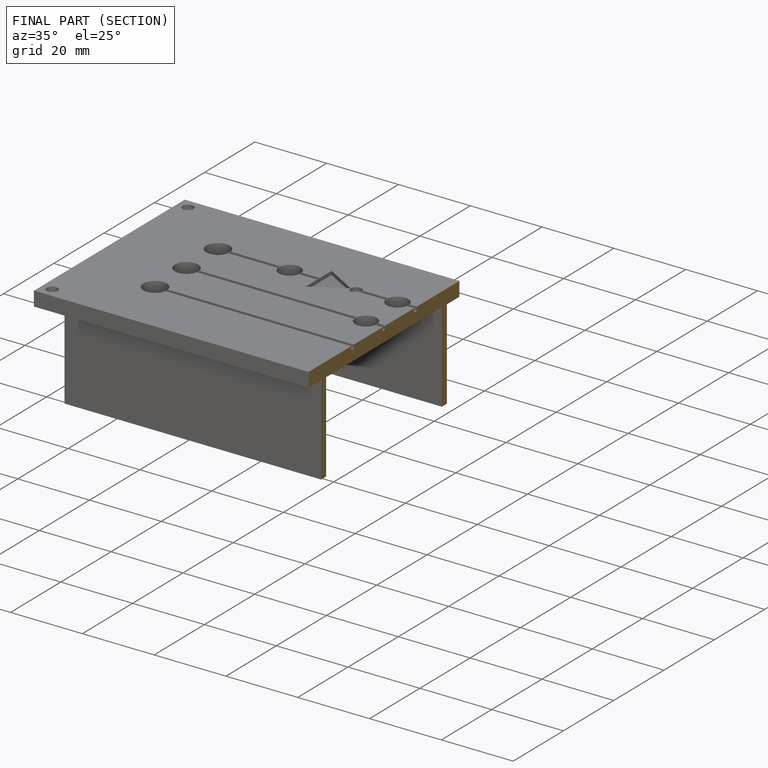
[diagram: finished part — half-section view (interior)]
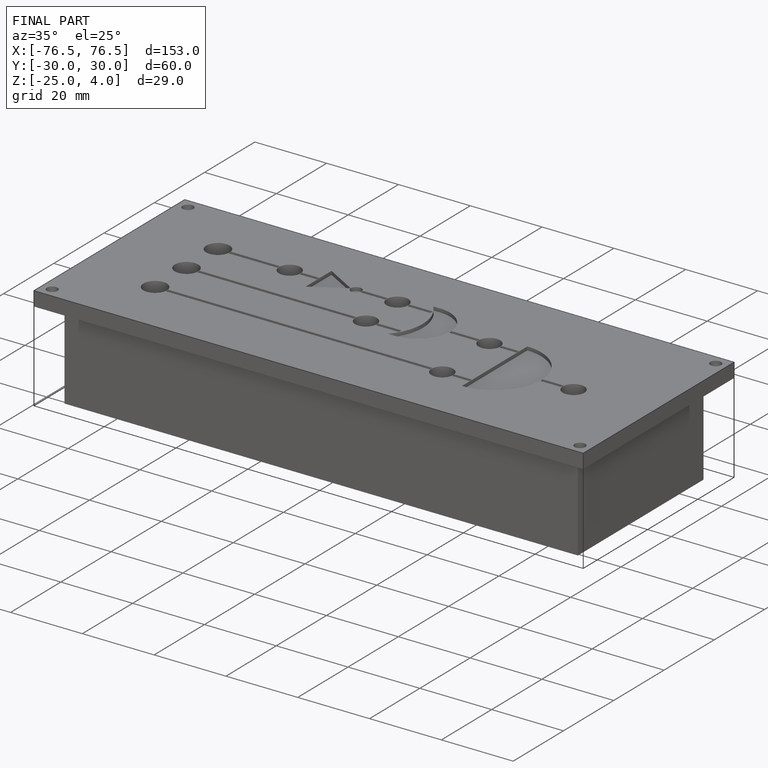
[diagram: finished part — iso view with bounding-box wireframe]
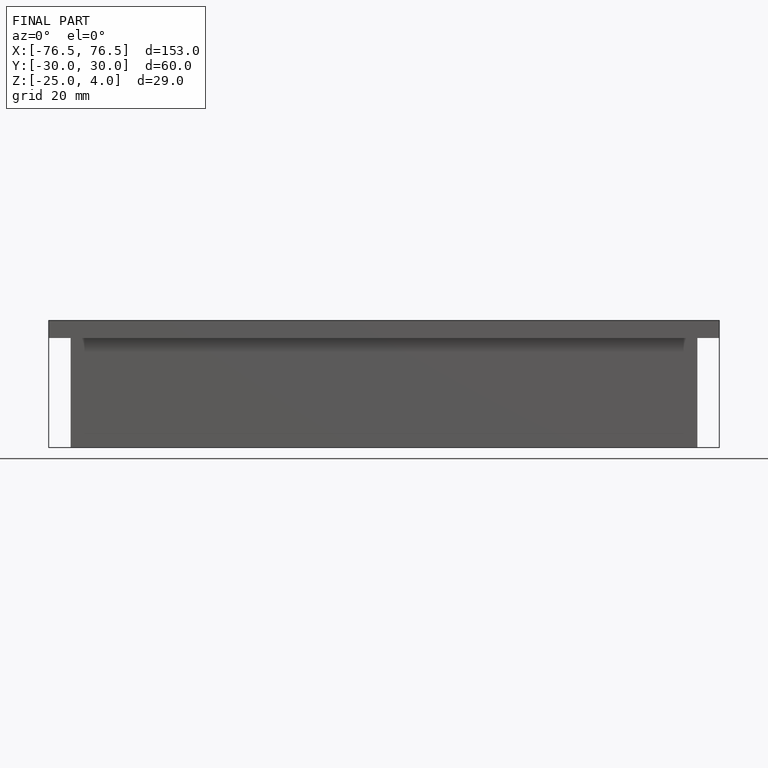
[diagram: finished part — front view with bounding-box wireframe]
